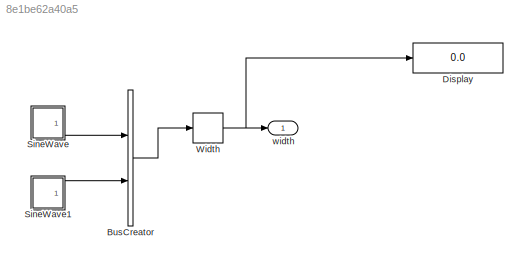
MODEL slx_8e1be62a40a5
KIND model
CONFIG AbsTol = auto
CONFIG EnableMultiTasking = on
CONFIG FixedStep = 0.200000
CONFIG MaxStep = auto
CONFIG MinStep = auto
CONFIG RelTol = 1e-3
CONFIG SampleTimeConstraint = Unconstrained
CONFIG Solver = FixedStepDiscrete
CONFIG SolverName = FixedStepDiscrete
CONFIG StartTime = 0.0
CONFIG StopTime = 100
BLOCK [BusCreator] BusCreator
  DisplayOption = bar
  InheritFromInputs = on
  Inputs = 2
  Ports = [2, 1]
BLOCK [Display] Display
  Decimation = 1
  Ports = [1]
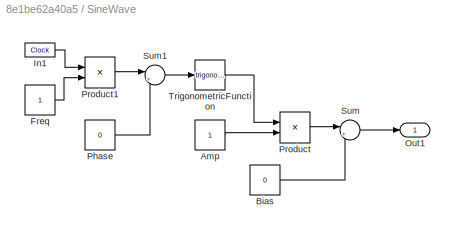
BLOCK [SubSystem] SineWave
  AncestorBlock = pp_lib/SineWaveFunction
  Ports = [0, 1]
  RequestExecContextInheritance = off
  TreatAsAtomicUnit = on
  Variant = off
BLOCK [Constant] SineWave/Amp
BLOCK [Constant] SineWave/Bias
  Value = 0
BLOCK [Constant] SineWave/Freq
BLOCK [Clock] SineWave/In1
BLOCK [Outport] SineWave/Out1
  IconDisplay = Port number
BLOCK [Constant] SineWave/Phase
  Value = 0
BLOCK [Product] SineWave/Product
  InputSameDT = off
  OutDataTypeStr = Inherit: Inherit via internal rule
  Ports = [2, 1]
  RndMeth = Floor
  SaturateOnIntegerOverflow = off
BLOCK [Product] SineWave/Product1
  InputSameDT = off
  OutDataTypeStr = Inherit: Inherit via internal rule
  Ports = [2, 1]
  RndMeth = Floor
  SaturateOnIntegerOverflow = off
BLOCK [Sum] SineWave/Sum
  IconShape = round
  InputSameDT = off
  Inputs = |++
  OutDataTypeStr = Inherit: Inherit via internal rule
  Ports = [2, 1]
  SaturateOnIntegerOverflow = off
BLOCK [Sum] SineWave/Sum1
  IconShape = round
  InputSameDT = off
  Inputs = |++
  OutDataTypeStr = Inherit: Inherit via internal rule
  Ports = [2, 1]
  SaturateOnIntegerOverflow = off
BLOCK [Trigonometry] SineWave/TrigonometricFunction
  Ports = [1, 1]
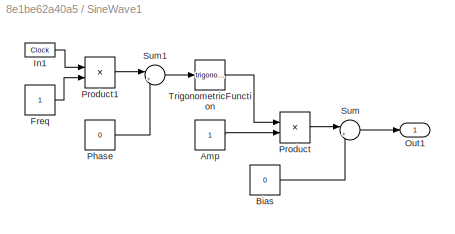
BLOCK [SubSystem] SineWave1
  AncestorBlock = pp_lib/SineWaveFunction
  Ports = [0, 1]
  RequestExecContextInheritance = off
  TreatAsAtomicUnit = on
  Variant = off
BLOCK [Constant] SineWave1/Amp
BLOCK [Constant] SineWave1/Bias
  Value = 0
BLOCK [Constant] SineWave1/Freq
BLOCK [Clock] SineWave1/In1
BLOCK [Outport] SineWave1/Out1
  IconDisplay = Port number
BLOCK [Constant] SineWave1/Phase
  Value = 0
BLOCK [Product] SineWave1/Product
  InputSameDT = off
  OutDataTypeStr = Inherit: Inherit via internal rule
  Ports = [2, 1]
  RndMeth = Floor
  SaturateOnIntegerOverflow = off
BLOCK [Product] SineWave1/Product1
  InputSameDT = off
  OutDataTypeStr = Inherit: Inherit via internal rule
  Ports = [2, 1]
  RndMeth = Floor
  SaturateOnIntegerOverflow = off
BLOCK [Sum] SineWave1/Sum
  IconShape = round
  InputSameDT = off
  Inputs = |++
  OutDataTypeStr = Inherit: Inherit via internal rule
  Ports = [2, 1]
  SaturateOnIntegerOverflow = off
BLOCK [Sum] SineWave1/Sum1
  IconShape = round
  InputSameDT = off
  Inputs = |++
  OutDataTypeStr = Inherit: Inherit via internal rule
  Ports = [2, 1]
  SaturateOnIntegerOverflow = off
BLOCK [Trigonometry] SineWave1/TrigonometricFunction
  Ports = [1, 1]
BLOCK [Width] Width
  DataType = uint8
BLOCK [Outport] width
  IconDisplay = Port number
LINE BusCreator:1 -> Width:1
LINE SineWave1:1 -> BusCreator:2
LINE SineWave:1 -> BusCreator:1
NET Width:1 -> Display:1, width:1
note: NET lines group one-source signal fan-out (src -> all destinations, sorted); 1:1 wires keep LINE
